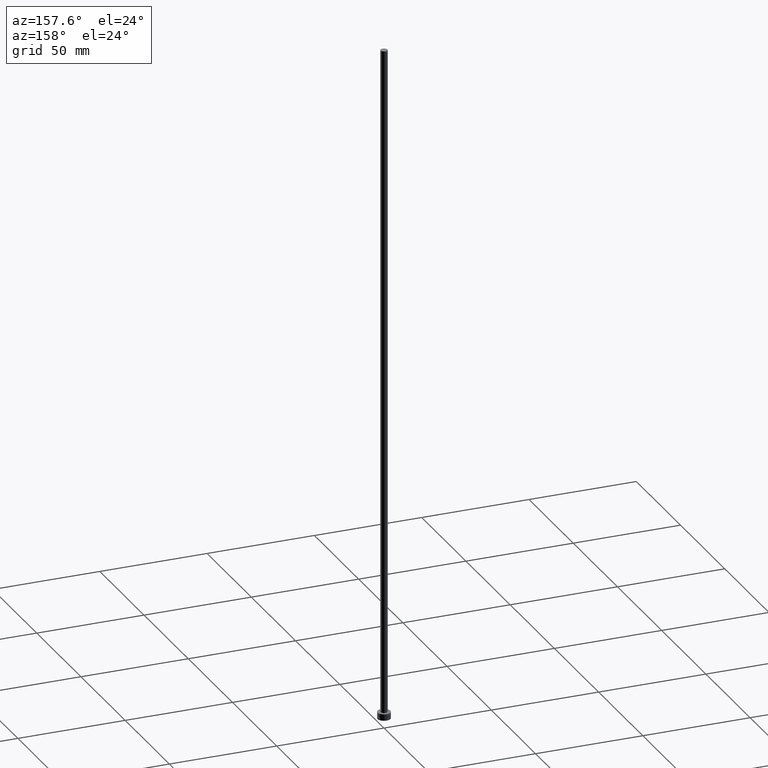
[diagram: clean part render]
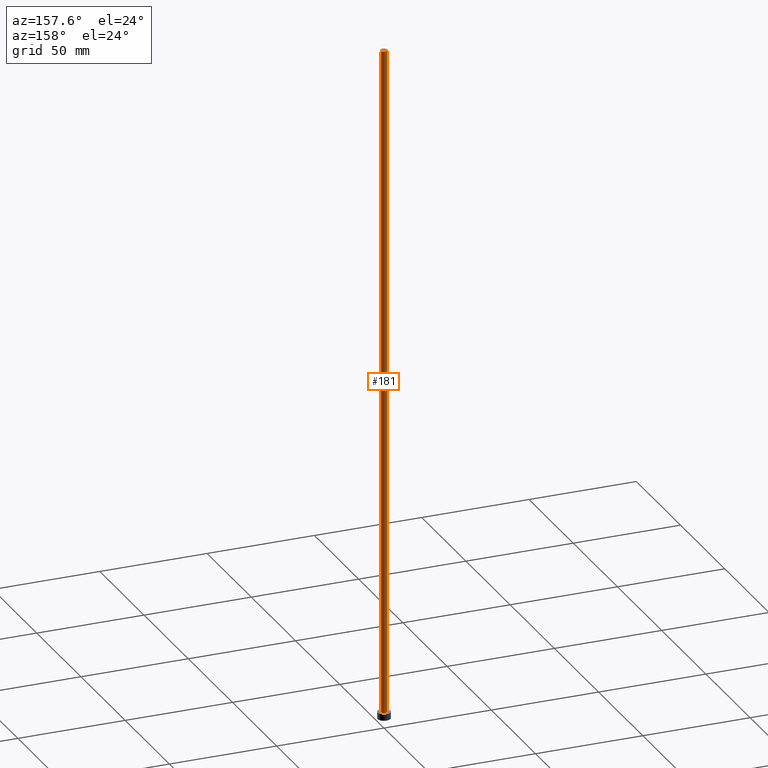
[diagram: same view with one face highlighted and labeled with its STEP entity id]
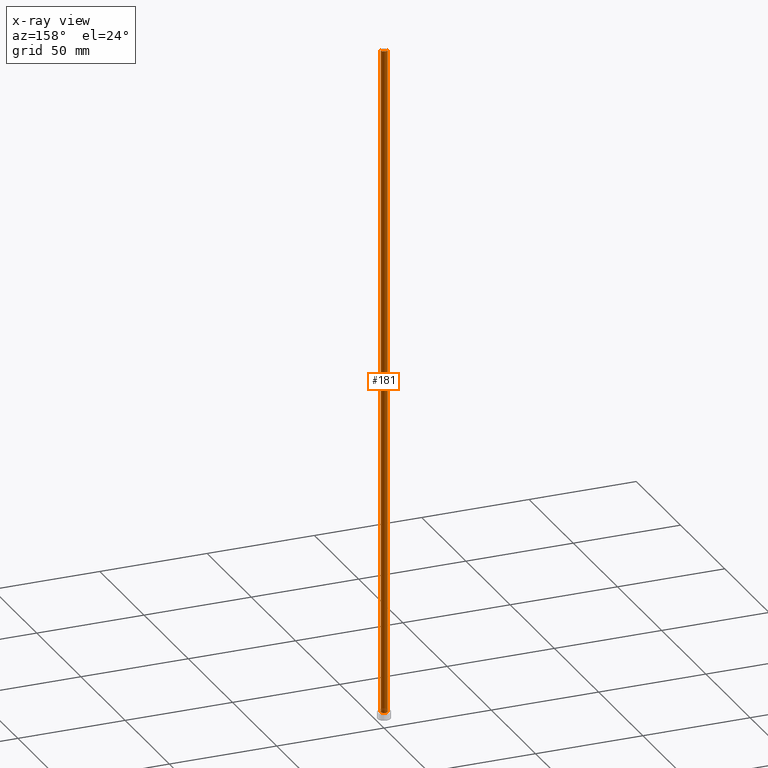
[diagram: x-ray of the same camera — body ghosted, the highlighted face saturated]
A machine part, auxiliary view. The second image highlights one B-rep face of the part: STEP entity #181.
The next image is the same camera in x-ray: the body ghosted, the highlighted face saturated — about 0% of this face is hidden behind the body in this view.
In plain terms, the highlighted cylindrical surface (edge-blend (fillet) strip) has radius 1.6 mm, axis along (-0, -0, -1).
Its self-contained STEP definition (entity closure, byte-faithful):
#3 = DIRECTION ( 'NONE',  ( -1.000000000000000000, 0.000000000000000000, 0.000000000000000000 ) ) ;
#8 = CARTESIAN_POINT ( 'NONE',  ( -1.600000000000000089, 0.000000000000000000, 3.000000000000000000 ) ) ;
#11 = CARTESIAN_POINT ( 'NONE',  ( 0.000000000000000000, 0.000000000000000000, 315.0000000000000000 ) ) ;
#17 = ORIENTED_EDGE ( 'NONE', *, *, #77, .F. ) ;
#21 = CARTESIAN_POINT ( 'NONE',  ( 0.000000000000000000, 0.000000000000000000, 315.0000000000000000 ) ) ;
#22 = CIRCLE ( 'NONE', #96, 1.600000000000000089 ) ;
#24 = CARTESIAN_POINT ( 'NONE',  ( 0.000000000000000000, 0.000000000000000000, 3.000000000000000000 ) ) ;
#26 = ORIENTED_EDGE ( 'NONE', *, *, #198, .T. ) ;
#38 = CARTESIAN_POINT ( 'NONE',  ( 1.600000000000000089, 1.959434878635765230E-16, 3.000000000000000000 ) ) ;
#46 = CARTESIAN_POINT ( 'NONE',  ( -1.600000000000000089, 0.000000000000000000, 315.0000000000000000 ) ) ;
#51 = DIRECTION ( 'NONE',  ( -0.000000000000000000, -0.000000000000000000, -1.000000000000000000 ) ) ;
#52 = CIRCLE ( 'NONE', #182, 1.600000000000000089 ) ;
#58 = DIRECTION ( 'NONE',  ( 1.000000000000000000, 0.000000000000000000, 0.000000000000000000 ) ) ;
#60 = ORIENTED_EDGE ( 'NONE', *, *, #66, .F. ) ;
#66 = EDGE_CURVE ( 'NONE', #81, #90, #22, .T. ) ;
#73 = DIRECTION ( 'NONE',  ( 0.000000000000000000, 0.000000000000000000, 1.000000000000000000 ) ) ;
#77 = EDGE_CURVE ( 'NONE', #90, #124, #251, .T. ) ;
#81 = VERTEX_POINT ( 'NONE', #174 ) ;
#90 = VERTEX_POINT ( 'NONE', #255 ) ;
#91 = FACE_OUTER_BOUND ( 'NONE', #189, .T. ) ;
#96 = AXIS2_PLACEMENT_3D ( 'NONE', #21, #176, #169 ) ;
#124 = VERTEX_POINT ( 'NONE', #8 ) ;
#139 = DIRECTION ( 'NONE',  ( -0.000000000000000000, -0.000000000000000000, -1.000000000000000000 ) ) ;
#141 = CYLINDRICAL_SURFACE ( 'NONE', #203, 1.600000000000000089 ) ;
#142 = CARTESIAN_POINT ( 'NONE',  ( 1.600000000000000089, 1.959434878635765230E-16, 315.0000000000000000 ) ) ;
#147 = VECTOR ( 'NONE', #139, 1000.000000000000000 ) ;
#151 = ORIENTED_EDGE ( 'NONE', *, *, #158, .T. ) ;
#158 = EDGE_CURVE ( 'NONE', #204, #124, #52, .T. ) ;
#169 = DIRECTION ( 'NONE',  ( 1.000000000000000000, 0.000000000000000000, 0.000000000000000000 ) ) ;
#174 = CARTESIAN_POINT ( 'NONE',  ( 1.600000000000000089, 1.959434878635765230E-16, 315.0000000000000000 ) ) ;
#176 = DIRECTION ( 'NONE',  ( 0.000000000000000000, 0.000000000000000000, 1.000000000000000000 ) ) ;
#181 = ADVANCED_FACE ( 'NONE', ( #91 ), #141, .T. ) ;
#182 = AXIS2_PLACEMENT_3D ( 'NONE', #24, #73, #58 ) ;
#189 = EDGE_LOOP ( 'NONE', ( #60, #26, #151, #17 ) ) ;
#198 = EDGE_CURVE ( 'NONE', #81, #204, #223, .T. ) ;
#200 = DIRECTION ( 'NONE',  ( -0.000000000000000000, -0.000000000000000000, -1.000000000000000000 ) ) ;
#203 = AXIS2_PLACEMENT_3D ( 'NONE', #11, #200, #3 ) ;
#204 = VERTEX_POINT ( 'NONE', #38 ) ;
#219 = VECTOR ( 'NONE', #51, 1000.000000000000000 ) ;
#223 = LINE ( 'NONE', #142, #147 ) ;
#251 = LINE ( 'NONE', #46, #219 ) ;
#255 = CARTESIAN_POINT ( 'NONE',  ( -1.600000000000000089, 0.000000000000000000, 315.0000000000000000 ) ) ;